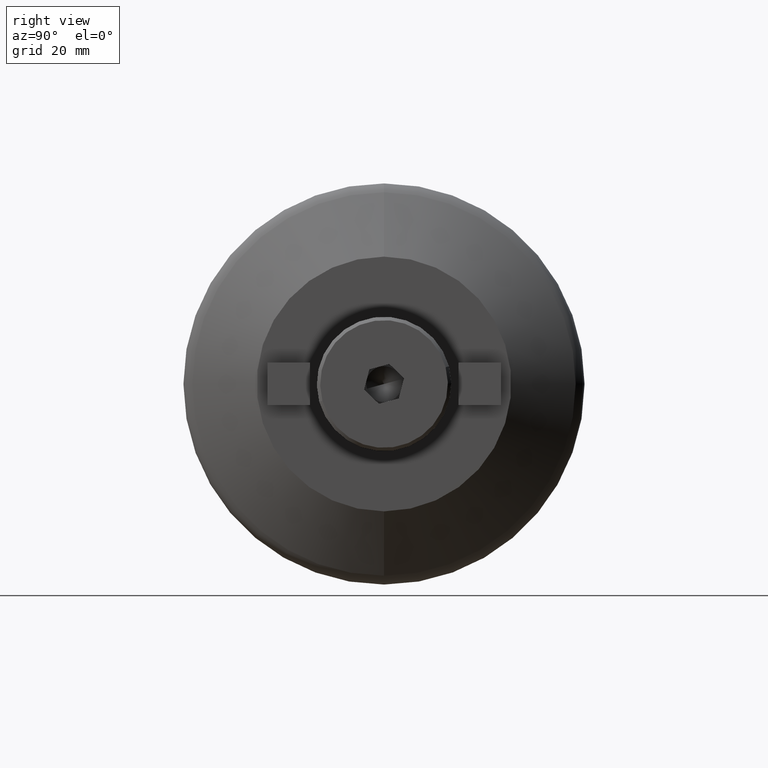
[diagram: clean part render]
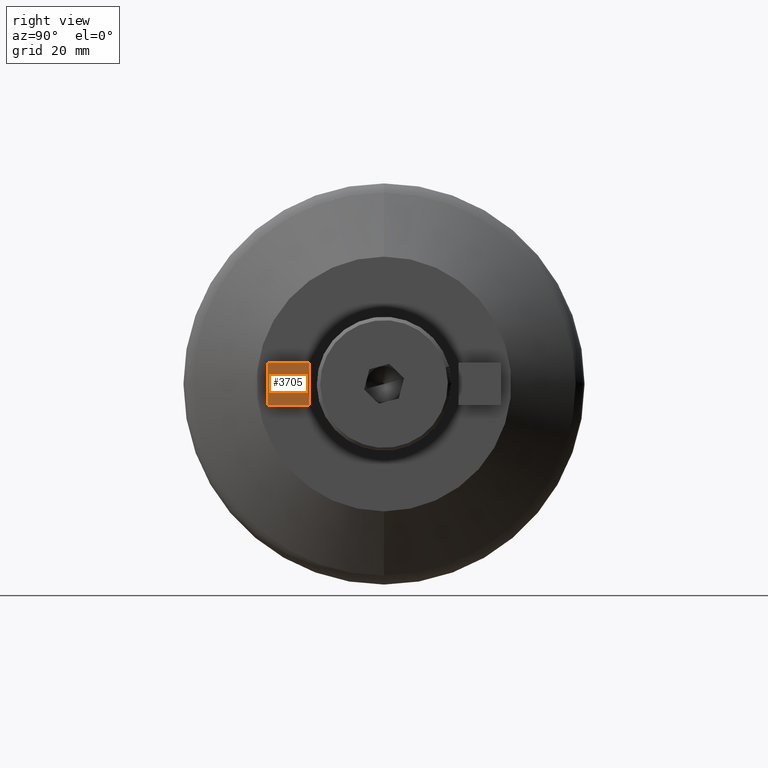
[diagram: same view with one face highlighted and labeled with its STEP entity id]
A machine part, right view. The second image highlights one B-rep face of the part: STEP entity #3705.
In plain terms, the highlighted planar face has unit normal (1, 0, 0).
Its self-contained STEP definition (entity closure, byte-faithful):
#108 = VECTOR ( 'NONE', #2280, 1000.000000000000000 ) ;
#119 = LINE ( 'NONE', #2289, #108 ) ;
#871 = ORIENTED_EDGE ( 'NONE', *, *, #2502, .T. ) ;
#1412 = ORIENTED_EDGE ( 'NONE', *, *, #2463, .T. ) ;
#1605 = FACE_OUTER_BOUND ( 'NONE', #8047, .T. ) ;
#1889 = AXIS2_PLACEMENT_3D ( 'NONE', #4990, #4993, #5100 ) ;
#2280 = DIRECTION ( 'NONE',  ( 0.0000000000000000000, 0.0000000000000000000, 1.000000000000000000 ) ) ;
#2289 = CARTESIAN_POINT ( 'NONE',  ( 5.556250000000040300, 4.762499999999998400, 4.762499999999999300 ) ) ;
#2457 = EDGE_CURVE ( 'NONE', #7532, #7497, #5240, .T. ) ;
#2463 = EDGE_CURVE ( 'NONE', #7815, #7814, #5255, .T. ) ;
#2502 = EDGE_CURVE ( 'NONE', #7497, #7815, #2530, .T. ) ;
#2530 = LINE ( 'NONE', #6365, #2534 ) ;
#2534 = VECTOR ( 'NONE', #6353, 1000.000000000000000 ) ;
#2785 = EDGE_CURVE ( 'NONE', #7814, #7532, #119, .T. ) ;
#3705 = ADVANCED_FACE ( 'NONE', ( #1605 ), #4971, .T. ) ;
#4004 = CARTESIAN_POINT ( 'NONE',  ( 5.556250000000040300, -4.762499999999999300, -4.762499999999999300 ) ) ;
#4005 = CARTESIAN_POINT ( 'NONE',  ( 5.556250000000040300, 4.762499999999999300, -4.762499999999999300 ) ) ;
#4961 = CARTESIAN_POINT ( 'NONE',  ( 5.556250000000040300, -4.762500000000000200, 4.762499999999999300 ) ) ;
#4971 = PLANE ( 'NONE',  #1889 ) ;
#4990 = CARTESIAN_POINT ( 'NONE',  ( 5.556250000000040300, -4.762500000000000200, 4.762499999999999300 ) ) ;
#4993 = DIRECTION ( 'NONE',  ( 1.000000000000000000, 0.0000000000000000000, 0.0000000000000000000 ) ) ;
#5022 = CARTESIAN_POINT ( 'NONE',  ( 5.556250000000040300, 4.762499999999998400, 4.762499999999999300 ) ) ;
#5100 = DIRECTION ( 'NONE',  ( 0.0000000000000000000, 0.0000000000000000000, -1.000000000000000000 ) ) ;
#5236 = VECTOR ( 'NONE', #7519, 1000.000000000000000 ) ;
#5240 = LINE ( 'NONE', #7477, #5236 ) ;
#5255 = LINE ( 'NONE', #7759, #5257 ) ;
#5257 = VECTOR ( 'NONE', #7782, 1000.000000000000000 ) ;
#6353 = DIRECTION ( 'NONE',  ( 0.0000000000000000000, 0.0000000000000000000, -1.000000000000000000 ) ) ;
#6365 = CARTESIAN_POINT ( 'NONE',  ( 5.556250000000040300, -4.762500000000000200, 4.762499999999999300 ) ) ;
#7435 = ORIENTED_EDGE ( 'NONE', *, *, #2457, .T. ) ;
#7451 = ORIENTED_EDGE ( 'NONE', *, *, #2785, .T. ) ;
#7477 = CARTESIAN_POINT ( 'NONE',  ( 5.556250000000040300, 4.762499999999998400, 4.762499999999999300 ) ) ;
#7497 = VERTEX_POINT ( 'NONE', #4961 ) ;
#7519 = DIRECTION ( 'NONE',  ( 0.0000000000000000000, -1.000000000000000000, -9.106159978880878600E-017 ) ) ;
#7532 = VERTEX_POINT ( 'NONE', #5022 ) ;
#7759 = CARTESIAN_POINT ( 'NONE',  ( 5.556250000000040300, 4.762499999999999300, -4.762499999999999300 ) ) ;
#7782 = DIRECTION ( 'NONE',  ( 0.0000000000000000000, 1.000000000000000000, 9.106159978880878600E-017 ) ) ;
#7814 = VERTEX_POINT ( 'NONE', #4005 ) ;
#7815 = VERTEX_POINT ( 'NONE', #4004 ) ;
#8047 = EDGE_LOOP ( 'NONE', ( #7435, #871, #1412, #7451 ) ) ;